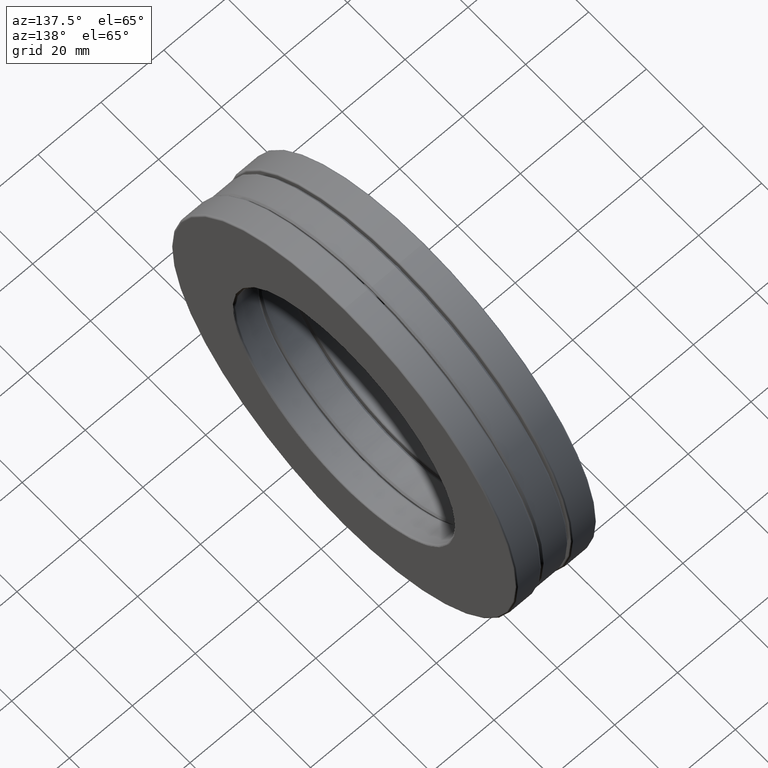
[diagram: clean part render]
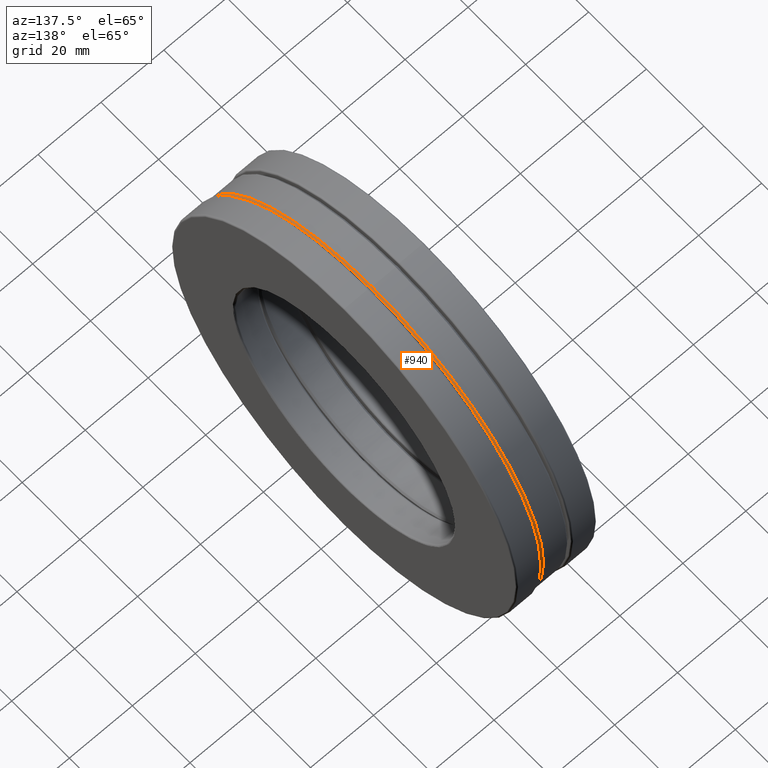
[diagram: same view with one face highlighted and labeled with its STEP entity id]
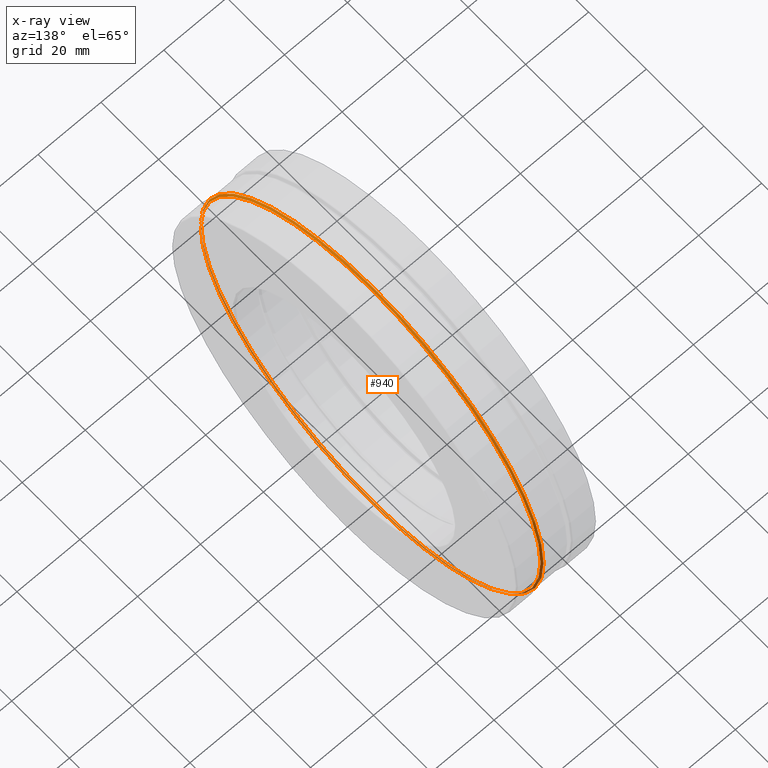
[diagram: x-ray of the same camera — body ghosted, the highlighted face saturated]
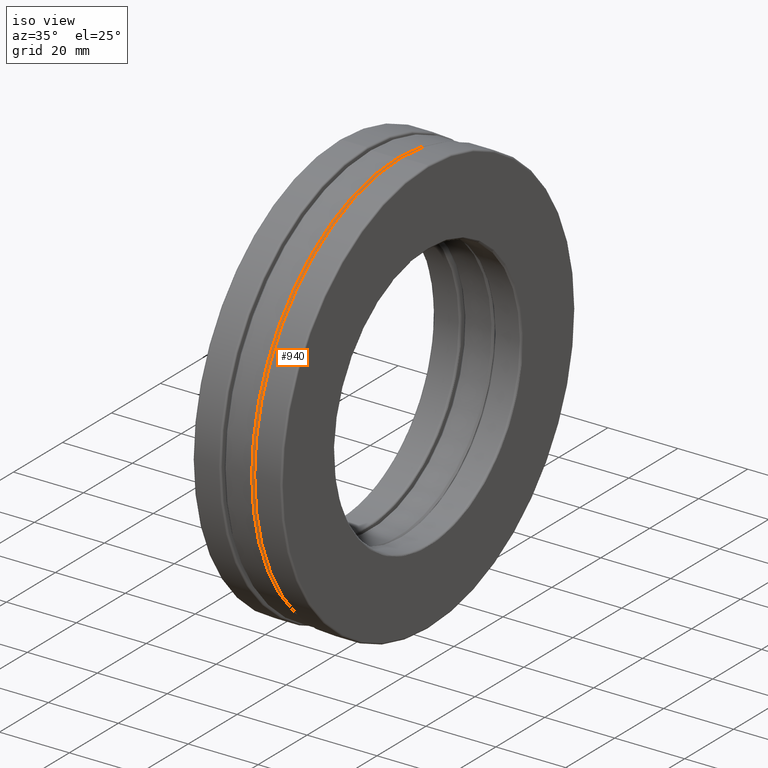
[diagram: same view with one face highlighted and labeled with its STEP entity id]
A machine part, auxiliary view. The second image highlights one B-rep face of the part: STEP entity #940.
The next image is the same camera in x-ray: the body ghosted, the highlighted face saturated — about 29% of this face is hidden behind the body in this view.
A second angle (iso view) of the same face is appended — the face is thin or edge-on in the first view.
In plain terms, the highlighted conical surface has half-angle 45 deg.
Its self-contained STEP definition (entity closure, byte-faithful):
#22 = CARTESIAN_POINT ( 'NONE',  ( 0.1675000000000000100, 0.0000000000000000000, 2.319375000000000000 ) ) ;
#37 = DIRECTION ( 'NONE',  ( -1.000000000000000000, -0.0000000000000000000, -0.0000000000000000000 ) ) ;
#45 = ORIENTED_EDGE ( 'NONE', *, *, #197, .F. ) ;
#152 = AXIS2_PLACEMENT_3D ( 'NONE', #359, #452, #582 ) ;
#171 = CIRCLE ( 'NONE', #238, 2.339374999999999500 ) ;
#197 = EDGE_CURVE ( 'NONE', #398, #398, #171, .T. ) ;
#238 = AXIS2_PLACEMENT_3D ( 'NONE', #552, #780, #1456 ) ;
#359 = CARTESIAN_POINT ( 'NONE',  ( 0.1675000000000000100, 0.0000000000000000000, 0.0000000000000000000 ) ) ;
#398 = VERTEX_POINT ( 'NONE', #812 ) ;
#452 = DIRECTION ( 'NONE',  ( -1.000000000000000000, -0.0000000000000000000, -0.0000000000000000000 ) ) ;
#534 = ORIENTED_EDGE ( 'NONE', *, *, #734, .T. ) ;
#552 = CARTESIAN_POINT ( 'NONE',  ( 0.1475000000000000800, 0.0000000000000000000, 0.0000000000000000000 ) ) ;
#582 = DIRECTION ( 'NONE',  ( 0.0000000000000000000, 0.0000000000000000000, 1.000000000000000000 ) ) ;
#589 = EDGE_LOOP ( 'NONE', ( #45 ) ) ;
#734 = EDGE_CURVE ( 'NONE', #768, #768, #1230, .T. ) ;
#768 = VERTEX_POINT ( 'NONE', #22 ) ;
#780 = DIRECTION ( 'NONE',  ( -1.000000000000000000, -0.0000000000000000000, -0.0000000000000000000 ) ) ;
#812 = CARTESIAN_POINT ( 'NONE',  ( 0.1475000000000000800, 0.0000000000000000000, 2.339374999999999500 ) ) ;
#815 = EDGE_LOOP ( 'NONE', ( #534 ) ) ;
#940 = ADVANCED_FACE ( 'NONE', ( #1393, #1263 ), #1362, .T. ) ;
#1230 = CIRCLE ( 'NONE', #152, 2.319375000000000000 ) ;
#1263 = FACE_OUTER_BOUND ( 'NONE', #589, .T. ) ;
#1280 = CARTESIAN_POINT ( 'NONE',  ( 0.1475000000000000800, 0.0000000000000000000, 0.0000000000000000000 ) ) ;
#1289 = DIRECTION ( 'NONE',  ( 0.0000000000000000000, 0.0000000000000000000, 1.000000000000000000 ) ) ;
#1362 = CONICAL_SURFACE ( 'NONE', #1462, 2.339374999999999500, 0.7853981633974440600 ) ;
#1393 = FACE_BOUND ( 'NONE', #815, .T. ) ;
#1456 = DIRECTION ( 'NONE',  ( 0.0000000000000000000, 0.0000000000000000000, 1.000000000000000000 ) ) ;
#1462 = AXIS2_PLACEMENT_3D ( 'NONE', #1280, #37, #1289 ) ;